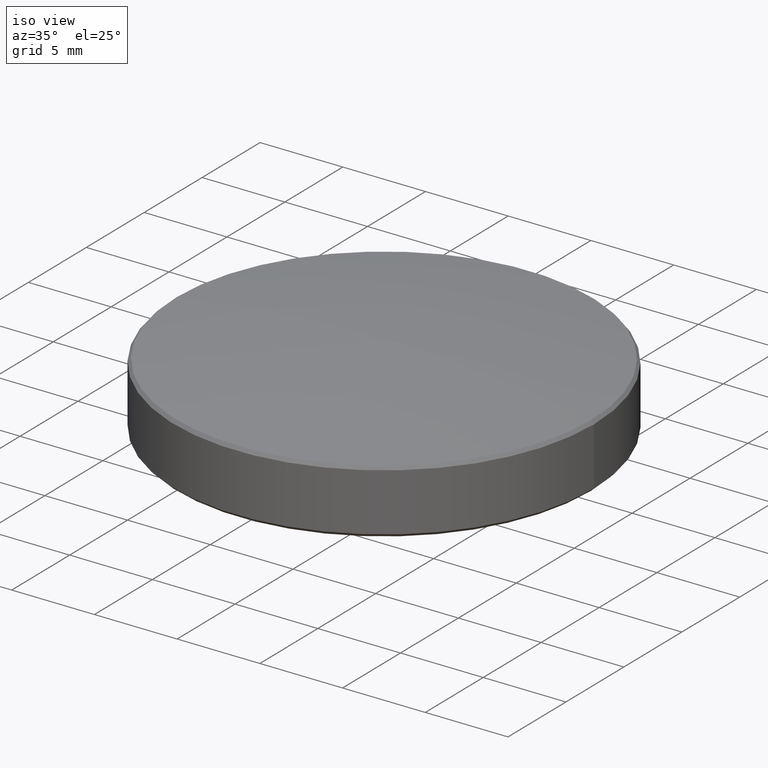
[diagram: clean part render]
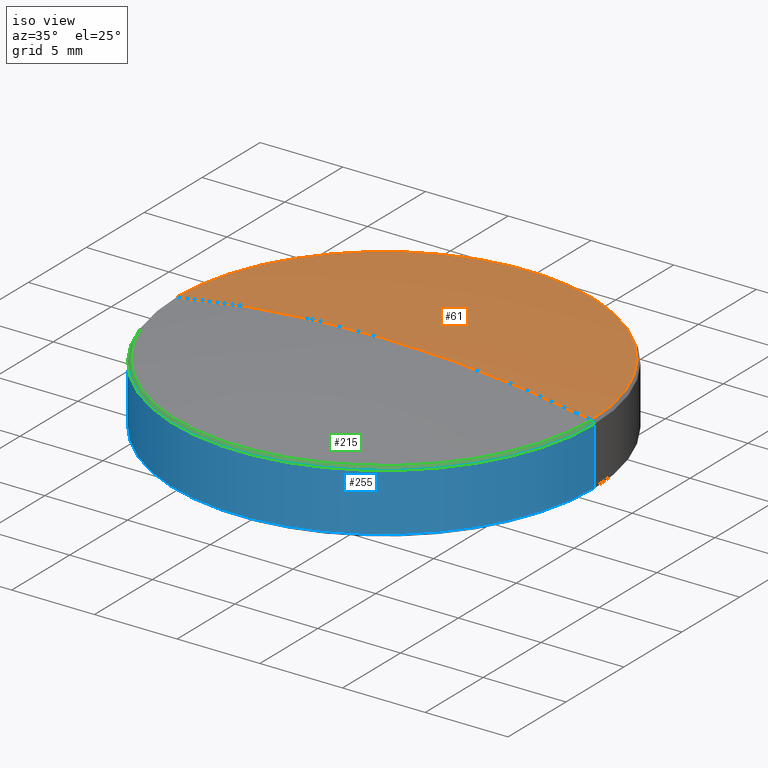
[diagram: same view with three faces highlighted in distinct colors, each labeled with its STEP entity id]
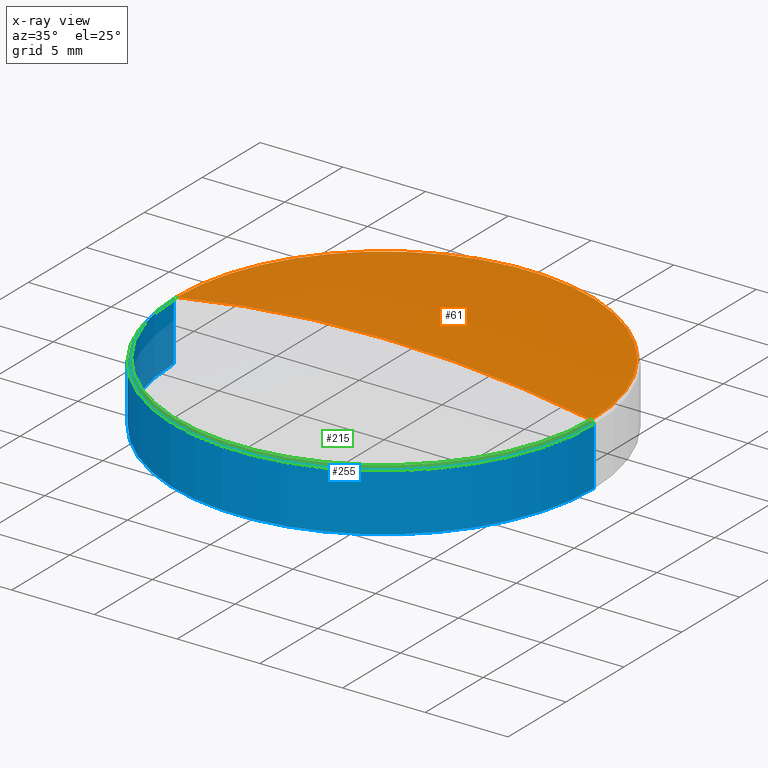
[diagram: x-ray of the same camera — body ghosted, the three highlighted faces saturated]
A machine part, iso view with three faces highlighted in distinct colors.
The next image is the same camera in x-ray (body ghosted, the three faces saturated) — at least one of them is partly hidden behind the body in this view.
Their STEP definitions:

[orange] entity #61 — the highlighted spherical surface has radius 71.66 mm.
#4 = SPHERICAL_SURFACE ( 'NONE', #78, 71.65999999999999659 ) ;
#9 = CIRCLE ( 'NONE', #232, 71.65999999999999659 ) ;
#11 = DIRECTION ( 'NONE',  ( 0.000000000000000000, -1.000000000000000000, 0.000000000000000000 ) ) ;
#14 = CARTESIAN_POINT ( 'NONE',  ( 0.000000000000000000, 0.000000000000000000, -66.65999999999999659 ) ) ;
#21 = ORIENTED_EDGE ( 'NONE', *, *, #93, .T. ) ;
#23 = ORIENTED_EDGE ( 'NONE', *, *, #166, .F. ) ;
#34 = CIRCLE ( 'NONE', #145, 12.53498460677301907 ) ;
#48 = DIRECTION ( 'NONE',  ( -1.224646799147353207E-16, 1.000000000000000000, 1.499759782661856513E-32 ) ) ;
#61 = ADVANCED_FACE ( 'NONE', ( #207 ), #4, .T. ) ;
#72 = CARTESIAN_POINT ( 'NONE',  ( 0.000000000000000000, 0.000000000000000000, 3.895154035038178364 ) ) ;
#78 = AXIS2_PLACEMENT_3D ( 'NONE', #190, #209, #87 ) ;
#83 = VERTEX_POINT ( 'NONE', #92 ) ;
#87 = DIRECTION ( 'NONE',  ( -1.000000000000000000, 0.000000000000000000, 1.936615658360934486E-16 ) ) ;
#92 = CARTESIAN_POINT ( 'NONE',  ( 12.53498460677301729, 1.535092877604591061E-15, 3.895154035038178364 ) ) ;
#93 = EDGE_CURVE ( 'NONE', #135, #83, #9, .T. ) ;
#94 = CARTESIAN_POINT ( 'NONE',  ( -12.53498460677301729, 0.000000000000000000, 3.895154035038178364 ) ) ;
#95 = DIRECTION ( 'NONE',  ( 0.000000000000000000, 0.000000000000000000, -1.000000000000000000 ) ) ;
#107 = EDGE_CURVE ( 'NONE', #83, #170, #34, .T. ) ;
#108 = EDGE_LOOP ( 'NONE', ( #23, #21, #247 ) ) ;
#111 = AXIS2_PLACEMENT_3D ( 'NONE', #14, #11, #95 ) ;
#135 = VERTEX_POINT ( 'NONE', #197 ) ;
#145 = AXIS2_PLACEMENT_3D ( 'NONE', #72, #162, #163 ) ;
#162 = DIRECTION ( 'NONE',  ( -0.000000000000000000, -0.000000000000000000, 1.000000000000000000 ) ) ;
#163 = DIRECTION ( 'NONE',  ( -1.000000000000000000, 0.000000000000000000, 0.000000000000000000 ) ) ;
#166 = EDGE_CURVE ( 'NONE', #135, #170, #222, .T. ) ;
#170 = VERTEX_POINT ( 'NONE', #94 ) ;
#190 = CARTESIAN_POINT ( 'NONE',  ( 0.000000000000000000, 0.000000000000000000, -66.65999999999999659 ) ) ;
#191 = CARTESIAN_POINT ( 'NONE',  ( 0.000000000000000000, 0.000000000000000000, -66.65999999999999659 ) ) ;
#197 = CARTESIAN_POINT ( 'NONE',  ( 4.387909481344959759E-15, 0.000000000000000000, 5.000000000000004441 ) ) ;
#207 = FACE_OUTER_BOUND ( 'NONE', #108, .T. ) ;
#209 = DIRECTION ( 'NONE',  ( 0.000000000000000000, 1.000000000000000000, -0.000000000000000000 ) ) ;
#222 = CIRCLE ( 'NONE', #111, 71.65999999999999659 ) ;
#232 = AXIS2_PLACEMENT_3D ( 'NONE', #191, #48, #258 ) ;
#247 = ORIENTED_EDGE ( 'NONE', *, *, #107, .T. ) ;
#258 = DIRECTION ( 'NONE',  ( -1.000000000000000000, -1.224646799147353454E-16, 0.000000000000000000 ) ) ;

[blue] entity #255 — the highlighted cylindrical surface (partial cylindrical patch) has radius 12.7 mm, axis along (-0, -0, -1).
#7 = EDGE_CURVE ( 'NONE', #37, #183, #20, .T. ) ;
#8 = DIRECTION ( 'NONE',  ( -0.000000000000000000, -0.000000000000000000, 1.000000000000000000 ) ) ;
#20 = CIRCLE ( 'NONE', #241, 12.69999999999999929 ) ;
#22 = DIRECTION ( 'NONE',  ( 0.000000000000000000, 0.000000000000000000, -1.000000000000000000 ) ) ;
#26 = CARTESIAN_POINT ( 'NONE',  ( 0.000000000000000000, 0.000000000000000000, 3.698237612947643971 ) ) ;
#28 = ORIENTED_EDGE ( 'NONE', *, *, #7, .T. ) ;
#37 = VERTEX_POINT ( 'NONE', #116 ) ;
#39 = VECTOR ( 'NONE', #177, 1000.000000000000000 ) ;
#54 = VERTEX_POINT ( 'NONE', #171 ) ;
#64 = DIRECTION ( 'NONE',  ( 1.000000000000000000, 0.000000000000000000, 0.000000000000000000 ) ) ;
#68 = CYLINDRICAL_SURFACE ( 'NONE', #214, 12.69999999999999929 ) ;
#71 = AXIS2_PLACEMENT_3D ( 'NONE', #139, #8, #216 ) ;
#74 = CARTESIAN_POINT ( 'NONE',  ( -12.69999999999999929, 0.000000000000000000, 3.879999999999999893 ) ) ;
#81 = ORIENTED_EDGE ( 'NONE', *, *, #137, .F. ) ;
#97 = CARTESIAN_POINT ( 'NONE',  ( 12.69999999999999929, 1.555301434917138433E-15, 3.879999999999999893 ) ) ;
#99 = DIRECTION ( 'NONE',  ( -0.000000000000000000, -0.000000000000000000, -1.000000000000000000 ) ) ;
#103 = DIRECTION ( 'NONE',  ( -1.000000000000000000, 0.000000000000000000, 0.000000000000000000 ) ) ;
#116 = CARTESIAN_POINT ( 'NONE',  ( 12.69999999999999929, 1.555301434917138433E-15, 3.698237612947643971 ) ) ;
#120 = CARTESIAN_POINT ( 'NONE',  ( -12.69999999999999929, 0.000000000000000000, 3.698237612947643971 ) ) ;
#132 = EDGE_LOOP ( 'NONE', ( #81, #28, #133, #156 ) ) ;
#133 = ORIENTED_EDGE ( 'NONE', *, *, #225, .T. ) ;
#134 = VECTOR ( 'NONE', #234, 1000.000000000000000 ) ;
#137 = EDGE_CURVE ( 'NONE', #37, #203, #180, .T. ) ;
#139 = CARTESIAN_POINT ( 'NONE',  ( 0.000000000000000000, 0.000000000000000000, 0.1999999999999987899 ) ) ;
#147 = CARTESIAN_POINT ( 'NONE',  ( 0.000000000000000000, 0.000000000000000000, 3.879999999999999893 ) ) ;
#148 = EDGE_CURVE ( 'NONE', #54, #203, #246, .T. ) ;
#156 = ORIENTED_EDGE ( 'NONE', *, *, #148, .T. ) ;
#171 = CARTESIAN_POINT ( 'NONE',  ( -12.69999999999999929, 0.000000000000000000, 0.1999999999999987899 ) ) ;
#177 = DIRECTION ( 'NONE',  ( -0.000000000000000000, -0.000000000000000000, -1.000000000000000000 ) ) ;
#180 = LINE ( 'NONE', #97, #39 ) ;
#183 = VERTEX_POINT ( 'NONE', #120 ) ;
#203 = VERTEX_POINT ( 'NONE', #239 ) ;
#214 = AXIS2_PLACEMENT_3D ( 'NONE', #147, #99, #103 ) ;
#216 = DIRECTION ( 'NONE',  ( 1.000000000000000000, 0.000000000000000000, 0.000000000000000000 ) ) ;
#225 = EDGE_CURVE ( 'NONE', #183, #54, #257, .T. ) ;
#234 = DIRECTION ( 'NONE',  ( -0.000000000000000000, -0.000000000000000000, -1.000000000000000000 ) ) ;
#239 = CARTESIAN_POINT ( 'NONE',  ( 12.69999999999999929, 1.555301434917138433E-15, 0.1999999999999987899 ) ) ;
#241 = AXIS2_PLACEMENT_3D ( 'NONE', #26, #22, #64 ) ;
#244 = FACE_OUTER_BOUND ( 'NONE', #132, .T. ) ;
#246 = CIRCLE ( 'NONE', #71, 12.69999999999999929 ) ;
#255 = ADVANCED_FACE ( 'NONE', ( #244 ), #68, .T. ) ;
#257 = LINE ( 'NONE', #74, #134 ) ;

[green] entity #215 — the highlighted conical surface has half-angle 39.963 deg.
#7 = EDGE_CURVE ( 'NONE', #37, #183, #20, .T. ) ;
#20 = CIRCLE ( 'NONE', #241, 12.69999999999999929 ) ;
#22 = DIRECTION ( 'NONE',  ( 0.000000000000000000, 0.000000000000000000, -1.000000000000000000 ) ) ;
#26 = CARTESIAN_POINT ( 'NONE',  ( 0.000000000000000000, 0.000000000000000000, 3.698237612947643971 ) ) ;
#35 = DIRECTION ( 'NONE',  ( -0.6422915872619319178, 0.000000000000000000, -0.7664603818414543746 ) ) ;
#37 = VERTEX_POINT ( 'NONE', #116 ) ;
#49 = LINE ( 'NONE', #144, #55 ) ;
#50 = DIRECTION ( 'NONE',  ( -1.000000000000000000, 0.000000000000000000, 0.000000000000000000 ) ) ;
#55 = VECTOR ( 'NONE', #35, 1000.000000000000227 ) ;
#64 = DIRECTION ( 'NONE',  ( 1.000000000000000000, 0.000000000000000000, 0.000000000000000000 ) ) ;
#83 = VERTEX_POINT ( 'NONE', #92 ) ;
#88 = ORIENTED_EDGE ( 'NONE', *, *, #106, .F. ) ;
#92 = CARTESIAN_POINT ( 'NONE',  ( 12.53498460677301729, 1.535092877604591061E-15, 3.895154035038178364 ) ) ;
#94 = CARTESIAN_POINT ( 'NONE',  ( -12.53498460677301729, 0.000000000000000000, 3.895154035038178364 ) ) ;
#106 = EDGE_CURVE ( 'NONE', #83, #37, #122, .T. ) ;
#110 = EDGE_LOOP ( 'NONE', ( #88, #229, #173, #125 ) ) ;
#116 = CARTESIAN_POINT ( 'NONE',  ( 12.69999999999999929, 1.555301434917138433E-15, 3.698237612947643971 ) ) ;
#120 = CARTESIAN_POINT ( 'NONE',  ( -12.69999999999999929, 0.000000000000000000, 3.698237612947643971 ) ) ;
#121 = FACE_OUTER_BOUND ( 'NONE', #110, .T. ) ;
#122 = LINE ( 'NONE', #141, #266 ) ;
#125 = ORIENTED_EDGE ( 'NONE', *, *, #7, .F. ) ;
#130 = CIRCLE ( 'NONE', #150, 12.53498460677301907 ) ;
#141 = CARTESIAN_POINT ( 'NONE',  ( 12.53498460677301729, 1.535092877604592047E-15, 3.895154035038178364 ) ) ;
#144 = CARTESIAN_POINT ( 'NONE',  ( -12.53498460677301729, 0.000000000000000000, 3.895154035038178364 ) ) ;
#150 = AXIS2_PLACEMENT_3D ( 'NONE', #194, #164, #256 ) ;
#164 = DIRECTION ( 'NONE',  ( -0.000000000000000000, -0.000000000000000000, 1.000000000000000000 ) ) ;
#170 = VERTEX_POINT ( 'NONE', #94 ) ;
#173 = ORIENTED_EDGE ( 'NONE', *, *, #235, .T. ) ;
#175 = EDGE_CURVE ( 'NONE', #170, #83, #130, .T. ) ;
#183 = VERTEX_POINT ( 'NONE', #120 ) ;
#193 = CONICAL_SURFACE ( 'NONE', #253, 12.53498460677301729, 0.6974843652732920507 ) ;
#194 = CARTESIAN_POINT ( 'NONE',  ( 0.000000000000000000, 0.000000000000000000, 3.895154035038178364 ) ) ;
#215 = ADVANCED_FACE ( 'NONE', ( #121 ), #193, .T. ) ;
#229 = ORIENTED_EDGE ( 'NONE', *, *, #175, .F. ) ;
#235 = EDGE_CURVE ( 'NONE', #170, #183, #49, .T. ) ;
#236 = DIRECTION ( 'NONE',  ( 0.6422915872619319178, 7.865803364595977467E-17, -0.7664603818414543746 ) ) ;
#238 = CARTESIAN_POINT ( 'NONE',  ( 0.000000000000000000, 0.000000000000000000, 3.895154035038178364 ) ) ;
#241 = AXIS2_PLACEMENT_3D ( 'NONE', #26, #22, #64 ) ;
#253 = AXIS2_PLACEMENT_3D ( 'NONE', #238, #259, #50 ) ;
#256 = DIRECTION ( 'NONE',  ( -1.000000000000000000, 0.000000000000000000, 0.000000000000000000 ) ) ;
#259 = DIRECTION ( 'NONE',  ( 0.000000000000000000, 0.000000000000000000, -1.000000000000000000 ) ) ;
#266 = VECTOR ( 'NONE', #236, 1000.000000000000227 ) ;